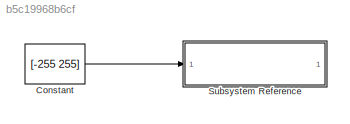
MODEL slx_b5c19968b6cf
KIND model
CONFIG AbsTol = auto
CONFIG EnableMultiTasking = on
CONFIG FixedStep = auto
CONFIG MaxStep = auto
CONFIG MinStep = auto
CONFIG RelTol = 1e-3
CONFIG SampleTimeConstraint = Unconstrained
CONFIG SolverName = FixedStepAuto
CONFIG StartTime = 0.0
CONFIG StopTime = inf
BLOCK [Constant] Constant
  OutDataTypeStr = int16
  Value = [-255 255]
BLOCK [SubSystem] Subsystem Reference
  ReferencedSubsystem = Motores
LINE Constant:1 -> Subsystem Reference:1
